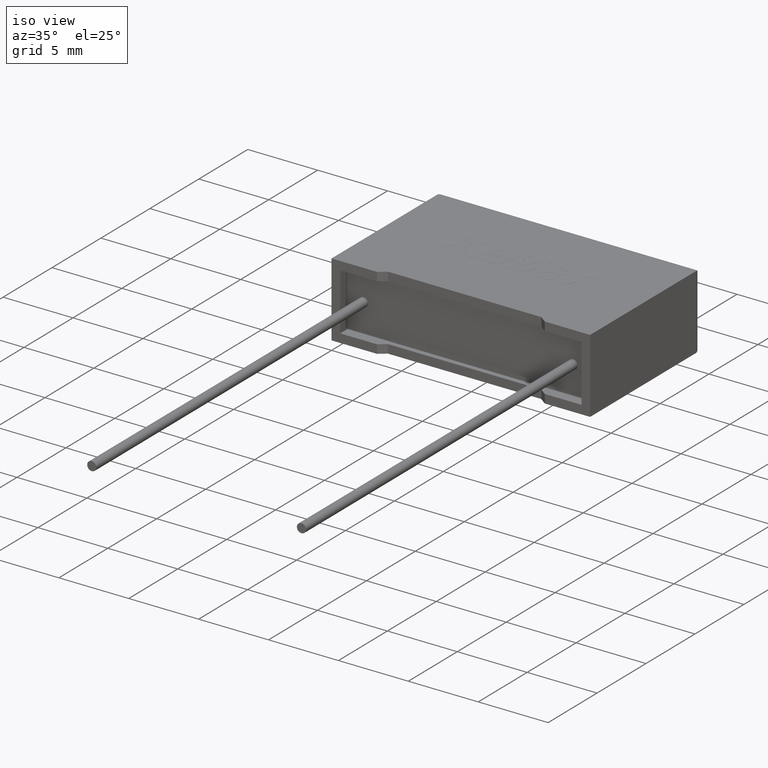
[diagram: clean part render]
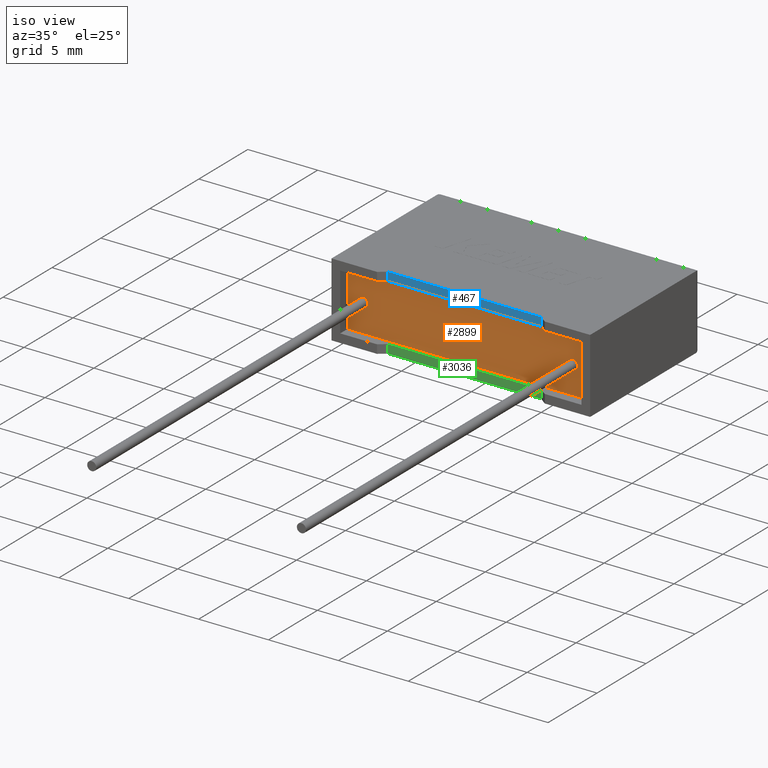
[diagram: same view with three faces highlighted in distinct colors, each labeled with its STEP entity id]
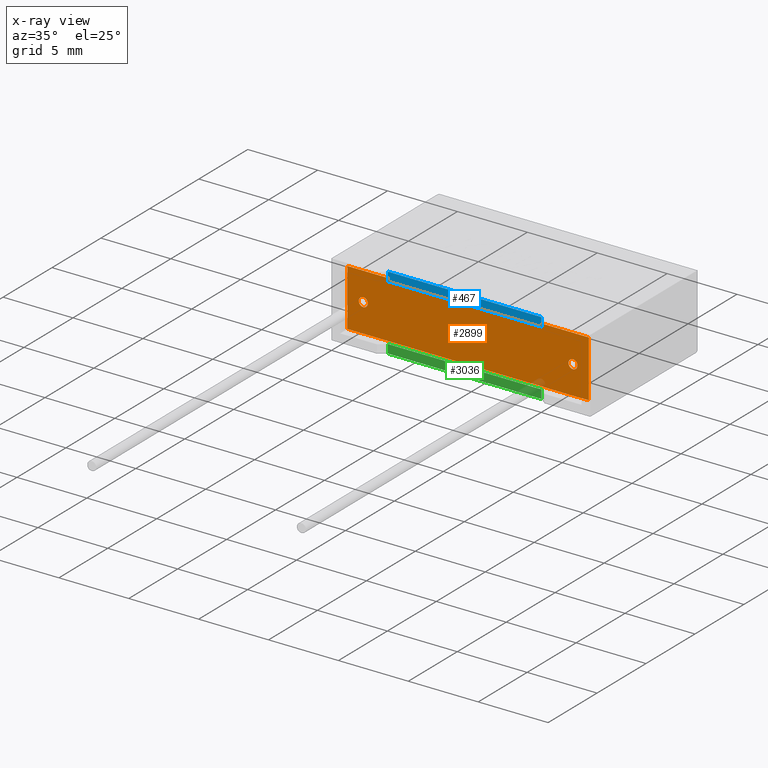
[diagram: x-ray of the same camera — body ghosted, the three highlighted faces saturated]
A machine part, iso view with three faces highlighted in distinct colors.
The next image is the same camera in x-ray (body ghosted, the three faces saturated) — at least one of them is partly hidden behind the body in this view.
Their STEP definitions:

[orange] entity #2899 — the highlighted planar face has unit normal (0, -1, 0).
#8 = CARTESIAN_POINT ( 'NONE',  ( 0.6166666049999998123, 0.7500000000000000000, 4.683333394999999122 ) ) ;
#21 = DIRECTION ( 'NONE',  ( 0.000000000000000000, 0.000000000000000000, -1.000000000000000000 ) ) ;
#57 = FACE_BOUND ( 'NONE', #1551, .T. ) ;
#80 = DIRECTION ( 'NONE',  ( 0.000000000000000000, -0.000000000000000000, -1.000000000000000000 ) ) ;
#106 = FACE_BOUND ( 'NONE', #823, .T. ) ;
#124 = ORIENTED_EDGE ( 'NONE', *, *, #1516, .T. ) ;
#168 = LINE ( 'NONE', #1122, #1157 ) ;
#225 = EDGE_LOOP ( 'NONE', ( #124, #1723, #2542, #575 ) ) ;
#265 = CARTESIAN_POINT ( 'NONE',  ( 1.749999999999999778, 0.7500000000000000000, 2.325000000000000178 ) ) ;
#299 = CARTESIAN_POINT ( 'NONE',  ( 16.75000000000000000, 0.7500000000000006661, 2.649999999999999911 ) ) ;
#335 = EDGE_CURVE ( 'NONE', #1521, #775, #2964, .T. ) ;
#375 = DIRECTION ( 'NONE',  ( 0.000000000000000000, 0.000000000000000000, -1.000000000000000000 ) ) ;
#399 = EDGE_CURVE ( 'NONE', #2366, #3010, #2290, .T. ) ;
#419 = CIRCLE ( 'NONE', #1415, 0.3249999999999997891 ) ;
#465 = AXIS2_PLACEMENT_3D ( 'NONE', #3025, #2722, #375 ) ;
#568 = AXIS2_PLACEMENT_3D ( 'NONE', #1478, #2201, #80 ) ;
#575 = ORIENTED_EDGE ( 'NONE', *, *, #696, .T. ) ;
#604 = EDGE_CURVE ( 'NONE', #3010, #2366, #1449, .T. ) ;
#618 = CIRCLE ( 'NONE', #465, 0.3249999999999997891 ) ;
#637 = CARTESIAN_POINT ( 'NONE',  ( 17.88333339499999752, 0.7500000000000000000, 0.6166666050000000343 ) ) ;
#696 = EDGE_CURVE ( 'NONE', #2729, #1752, #168, .T. ) ;
#742 = ORIENTED_EDGE ( 'NONE', *, *, #604, .F. ) ;
#775 = VERTEX_POINT ( 'NONE', #637 ) ;
#783 = ORIENTED_EDGE ( 'NONE', *, *, #2763, .F. ) ;
#823 = EDGE_LOOP ( 'NONE', ( #742, #2699 ) ) ;
#888 = DIRECTION ( 'NONE',  ( 1.000000000000000000, 0.000000000000000000, 0.000000000000000000 ) ) ;
#916 = DIRECTION ( 'NONE',  ( 0.000000000000000000, -1.000000000000000000, 0.000000000000000000 ) ) ;
#940 = CARTESIAN_POINT ( 'NONE',  ( 0.6166666049999998123, 0.7500000000000000000, 4.683333394999999122 ) ) ;
#1014 = FACE_OUTER_BOUND ( 'NONE', #225, .T. ) ;
#1034 = ORIENTED_EDGE ( 'NONE', *, *, #2308, .F. ) ;
#1098 = CARTESIAN_POINT ( 'NONE',  ( 0.6166666050000000343, 0.7500000000000000000, 0.6166666050000000343 ) ) ;
#1122 = CARTESIAN_POINT ( 'NONE',  ( 17.88333339499999752, 0.7500000000000000000, 4.683333395000000898 ) ) ;
#1157 = VECTOR ( 'NONE', #3047, 1000.000000000000000 ) ;
#1236 = DIRECTION ( 'NONE',  ( 0.000000000000000000, 0.000000000000000000, -1.000000000000000000 ) ) ;
#1253 = DIRECTION ( 'NONE',  ( 0.000000000000000000, -1.000000000000000000, 0.000000000000000000 ) ) ;
#1361 = CARTESIAN_POINT ( 'NONE',  ( 16.75000000000000000, 0.7500000000000006661, 2.325000000000000178 ) ) ;
#1383 = DIRECTION ( 'NONE',  ( 0.000000000000000000, 0.000000000000000000, 1.000000000000000000 ) ) ;
#1409 = VECTOR ( 'NONE', #888, 1000.000000000000000 ) ;
#1415 = AXIS2_PLACEMENT_3D ( 'NONE', #299, #1253, #1236 ) ;
#1428 = DIRECTION ( 'NONE',  ( 0.000000000000000000, -1.000000000000000000, 0.000000000000000000 ) ) ;
#1449 = CIRCLE ( 'NONE', #2975, 0.3249999999999997891 ) ;
#1459 = VERTEX_POINT ( 'NONE', #2502 ) ;
#1478 = CARTESIAN_POINT ( 'NONE',  ( 0.000000000000000000, 0.7500000000000000000, 0.000000000000000000 ) ) ;
#1510 = DIRECTION ( 'NONE',  ( 5.332141670183430817E-17, 0.000000000000000000, -1.000000000000000000 ) ) ;
#1516 = EDGE_CURVE ( 'NONE', #1752, #1521, #1883, .T. ) ;
#1521 = VERTEX_POINT ( 'NONE', #1098 ) ;
#1529 = EDGE_CURVE ( 'NONE', #775, #2729, #1587, .T. ) ;
#1551 = EDGE_LOOP ( 'NONE', ( #783, #1034 ) ) ;
#1556 = AXIS2_PLACEMENT_3D ( 'NONE', #2115, #1428, #21 ) ;
#1587 = LINE ( 'NONE', #2790, #2690 ) ;
#1646 = DIRECTION ( 'NONE',  ( 0.000000000000000000, 0.000000000000000000, -1.000000000000000000 ) ) ;
#1717 = PLANE ( 'NONE',  #568 ) ;
#1723 = ORIENTED_EDGE ( 'NONE', *, *, #335, .T. ) ;
#1752 = VERTEX_POINT ( 'NONE', #940 ) ;
#1858 = CARTESIAN_POINT ( 'NONE',  ( 0.6166666050000000343, 0.7500000000000000000, 0.6166666050000000343 ) ) ;
#1883 = LINE ( 'NONE', #8, #2585 ) ;
#2047 = CARTESIAN_POINT ( 'NONE',  ( 17.88333339499999752, 0.7500000000000000000, 4.683333395000000898 ) ) ;
#2083 = CARTESIAN_POINT ( 'NONE',  ( 1.749999999999999778, 0.7500000000000000000, 2.974999999999999645 ) ) ;
#2092 = CARTESIAN_POINT ( 'NONE',  ( 1.749999999999999778, 0.7500000000000000000, 2.649999999999999911 ) ) ;
#2115 = CARTESIAN_POINT ( 'NONE',  ( 1.749999999999999778, 0.7500000000000000000, 2.649999999999999911 ) ) ;
#2201 = DIRECTION ( 'NONE',  ( 0.000000000000000000, -1.000000000000000000, 0.000000000000000000 ) ) ;
#2290 = CIRCLE ( 'NONE', #1556, 0.3249999999999997891 ) ;
#2308 = EDGE_CURVE ( 'NONE', #3007, #1459, #419, .T. ) ;
#2366 = VERTEX_POINT ( 'NONE', #265 ) ;
#2502 = CARTESIAN_POINT ( 'NONE',  ( 16.75000000000000000, 0.7500000000000006661, 2.974999999999999645 ) ) ;
#2542 = ORIENTED_EDGE ( 'NONE', *, *, #1529, .T. ) ;
#2585 = VECTOR ( 'NONE', #1510, 1000.000000000000000 ) ;
#2690 = VECTOR ( 'NONE', #1383, 1000.000000000000000 ) ;
#2699 = ORIENTED_EDGE ( 'NONE', *, *, #399, .F. ) ;
#2722 = DIRECTION ( 'NONE',  ( 0.000000000000000000, -1.000000000000000000, 0.000000000000000000 ) ) ;
#2729 = VERTEX_POINT ( 'NONE', #2047 ) ;
#2763 = EDGE_CURVE ( 'NONE', #1459, #3007, #618, .T. ) ;
#2790 = CARTESIAN_POINT ( 'NONE',  ( 17.88333339499999752, 0.7500000000000000000, 0.6166666050000000343 ) ) ;
#2899 = ADVANCED_FACE ( 'NONE', ( #57, #1014, #106 ), #1717, .T. ) ;
#2964 = LINE ( 'NONE', #1858, #1409 ) ;
#2975 = AXIS2_PLACEMENT_3D ( 'NONE', #2092, #916, #1646 ) ;
#3007 = VERTEX_POINT ( 'NONE', #1361 ) ;
#3010 = VERTEX_POINT ( 'NONE', #2083 ) ;
#3025 = CARTESIAN_POINT ( 'NONE',  ( 16.75000000000000000, 0.7500000000000006661, 2.649999999999999911 ) ) ;
#3047 = DIRECTION ( 'NONE',  ( -1.000000000000000000, 0.000000000000000000, -1.004666098601887175E-16 ) ) ;

[blue] entity #467 — the highlighted planar face has unit normal (-0, 1, 0).
#34 = DIRECTION ( 'NONE',  ( -1.185729251540992573E-16, 1.000000000000000000, 0.000000000000000000 ) ) ;
#230 = CARTESIAN_POINT ( 'NONE',  ( 3.763745000000000118, 0.3896239999999999148, 4.683333394999999122 ) ) ;
#292 = DIRECTION ( 'NONE',  ( -0.000000000000000000, -0.000000000000000000, 1.000000000000000000 ) ) ;
#328 = DIRECTION ( 'NONE',  ( -1.000000000000000000, -1.185729251540992573E-16, 0.000000000000000000 ) ) ;
#338 = LINE ( 'NONE', #1226, #1768 ) ;
#410 = CARTESIAN_POINT ( 'NONE',  ( 14.73625499999999811, 0.3896239999999999148, 0.000000000000000000 ) ) ;
#467 = ADVANCED_FACE ( 'NONE', ( #1652 ), #1694, .F. ) ;
#514 = VERTEX_POINT ( 'NONE', #2706 ) ;
#672 = VECTOR ( 'NONE', #1168, 1000.000000000000000 ) ;
#728 = CARTESIAN_POINT ( 'NONE',  ( 17.88333339499999752, 0.3896240000000016357, 4.683333395000000898 ) ) ;
#875 = VECTOR ( 'NONE', #292, 1000.000000000000000 ) ;
#1168 = DIRECTION ( 'NONE',  ( -1.000000000000000000, -1.185729251540992573E-16, -1.004666098601887052E-16 ) ) ;
#1226 = CARTESIAN_POINT ( 'NONE',  ( 9.250000000000000000, 0.3896240000000005810, 5.299999999999999822 ) ) ;
#1453 = CARTESIAN_POINT ( 'NONE',  ( 14.73625499999999811, 0.3896239999999999148, 4.683333395000000898 ) ) ;
#1505 = AXIS2_PLACEMENT_3D ( 'NONE', #2129, #34, #1506 ) ;
#1506 = DIRECTION ( 'NONE',  ( -1.000000000000000000, -1.185729251540992573E-16, 0.000000000000000000 ) ) ;
#1604 = LINE ( 'NONE', #410, #2824 ) ;
#1652 = FACE_OUTER_BOUND ( 'NONE', #2664, .T. ) ;
#1694 = PLANE ( 'NONE',  #1505 ) ;
#1746 = VERTEX_POINT ( 'NONE', #1919 ) ;
#1768 = VECTOR ( 'NONE', #328, 1000.000000000000000 ) ;
#1773 = LINE ( 'NONE', #2235, #875 ) ;
#1826 = EDGE_CURVE ( 'NONE', #514, #1746, #338, .T. ) ;
#1919 = CARTESIAN_POINT ( 'NONE',  ( 3.763745000000000118, 0.3896239999999999148, 5.299999999999999822 ) ) ;
#1963 = ORIENTED_EDGE ( 'NONE', *, *, #2385, .F. ) ;
#2072 = DIRECTION ( 'NONE',  ( -0.000000000000000000, -0.000000000000000000, 1.000000000000000000 ) ) ;
#2129 = CARTESIAN_POINT ( 'NONE',  ( 9.250000000000000000, 0.3896240000000005810, 0.000000000000000000 ) ) ;
#2176 = VERTEX_POINT ( 'NONE', #1453 ) ;
#2220 = ORIENTED_EDGE ( 'NONE', *, *, #1826, .T. ) ;
#2235 = CARTESIAN_POINT ( 'NONE',  ( 3.763745000000000118, 0.3896239999999999148, 0.000000000000000000 ) ) ;
#2242 = EDGE_CURVE ( 'NONE', #2176, #514, #1604, .T. ) ;
#2265 = ORIENTED_EDGE ( 'NONE', *, *, #2804, .F. ) ;
#2368 = LINE ( 'NONE', #728, #672 ) ;
#2385 = EDGE_CURVE ( 'NONE', #2782, #1746, #1773, .T. ) ;
#2435 = ORIENTED_EDGE ( 'NONE', *, *, #2242, .T. ) ;
#2664 = EDGE_LOOP ( 'NONE', ( #2265, #2435, #2220, #1963 ) ) ;
#2706 = CARTESIAN_POINT ( 'NONE',  ( 14.73625499999999811, 0.3896239999999999148, 5.299999999999999822 ) ) ;
#2782 = VERTEX_POINT ( 'NONE', #230 ) ;
#2804 = EDGE_CURVE ( 'NONE', #2176, #2782, #2368, .T. ) ;
#2824 = VECTOR ( 'NONE', #2072, 1000.000000000000000 ) ;

[green] entity #3036 — the highlighted planar face has unit normal (-0, 1, 0).
#40 = EDGE_CURVE ( 'NONE', #1518, #1685, #1927, .T. ) ;
#83 = ORIENTED_EDGE ( 'NONE', *, *, #681, .F. ) ;
#253 = ORIENTED_EDGE ( 'NONE', *, *, #40, .T. ) ;
#260 = ORIENTED_EDGE ( 'NONE', *, *, #938, .F. ) ;
#263 = VERTEX_POINT ( 'NONE', #1044 ) ;
#302 = VECTOR ( 'NONE', #1183, 1000.000000000000000 ) ;
#344 = CARTESIAN_POINT ( 'NONE',  ( 14.73625499999999811, 0.3896239999999999148, 0.000000000000000000 ) ) ;
#408 = DIRECTION ( 'NONE',  ( -1.000000000000000000, -1.185729251540992573E-16, 0.000000000000000000 ) ) ;
#449 = CARTESIAN_POINT ( 'NONE',  ( 9.250000000000000000, 0.3896240000000005810, 0.000000000000000000 ) ) ;
#581 = EDGE_LOOP ( 'NONE', ( #83, #2860, #253, #260 ) ) ;
#681 = EDGE_CURVE ( 'NONE', #1661, #263, #1956, .T. ) ;
#761 = AXIS2_PLACEMENT_3D ( 'NONE', #449, #1429, #2820 ) ;
#814 = VECTOR ( 'NONE', #408, 1000.000000000000000 ) ;
#864 = CARTESIAN_POINT ( 'NONE',  ( 0.6166666050000000343, 0.3896239999999995263, 0.6166666050000000343 ) ) ;
#909 = VECTOR ( 'NONE', #987, 1000.000000000000000 ) ;
#938 = EDGE_CURVE ( 'NONE', #263, #1685, #1304, .T. ) ;
#987 = DIRECTION ( 'NONE',  ( -0.000000000000000000, -0.000000000000000000, 1.000000000000000000 ) ) ;
#1044 = CARTESIAN_POINT ( 'NONE',  ( 3.763745000000000118, 0.3896239999999999148, 0.6166666050000000343 ) ) ;
#1183 = DIRECTION ( 'NONE',  ( -0.000000000000000000, -0.000000000000000000, 1.000000000000000000 ) ) ;
#1219 = CARTESIAN_POINT ( 'NONE',  ( 14.73625499999999811, 0.3896239999999999148, 0.000000000000000000 ) ) ;
#1304 = LINE ( 'NONE', #864, #2240 ) ;
#1380 = FACE_OUTER_BOUND ( 'NONE', #581, .T. ) ;
#1429 = DIRECTION ( 'NONE',  ( -1.185729251540992573E-16, 1.000000000000000000, 0.000000000000000000 ) ) ;
#1518 = VERTEX_POINT ( 'NONE', #344 ) ;
#1576 = DIRECTION ( 'NONE',  ( 1.000000000000000000, 1.185729251540992573E-16, 0.000000000000000000 ) ) ;
#1599 = CARTESIAN_POINT ( 'NONE',  ( 9.250000000000000000, 0.3896240000000005810, 0.000000000000000000 ) ) ;
#1661 = VERTEX_POINT ( 'NONE', #2535 ) ;
#1685 = VERTEX_POINT ( 'NONE', #2811 ) ;
#1927 = LINE ( 'NONE', #1219, #302 ) ;
#1956 = LINE ( 'NONE', #3056, #909 ) ;
#2240 = VECTOR ( 'NONE', #1576, 1000.000000000000000 ) ;
#2490 = LINE ( 'NONE', #1599, #814 ) ;
#2535 = CARTESIAN_POINT ( 'NONE',  ( 3.763745000000000118, 0.3896239999999999148, 0.000000000000000000 ) ) ;
#2811 = CARTESIAN_POINT ( 'NONE',  ( 14.73625499999999811, 0.3896239999999999148, 0.6166666050000000343 ) ) ;
#2820 = DIRECTION ( 'NONE',  ( -1.000000000000000000, -1.185729251540992573E-16, 0.000000000000000000 ) ) ;
#2860 = ORIENTED_EDGE ( 'NONE', *, *, #2980, .F. ) ;
#2952 = PLANE ( 'NONE',  #761 ) ;
#2980 = EDGE_CURVE ( 'NONE', #1518, #1661, #2490, .T. ) ;
#3036 = ADVANCED_FACE ( 'NONE', ( #1380 ), #2952, .F. ) ;
#3056 = CARTESIAN_POINT ( 'NONE',  ( 3.763745000000000118, 0.3896239999999999148, 0.000000000000000000 ) ) ;